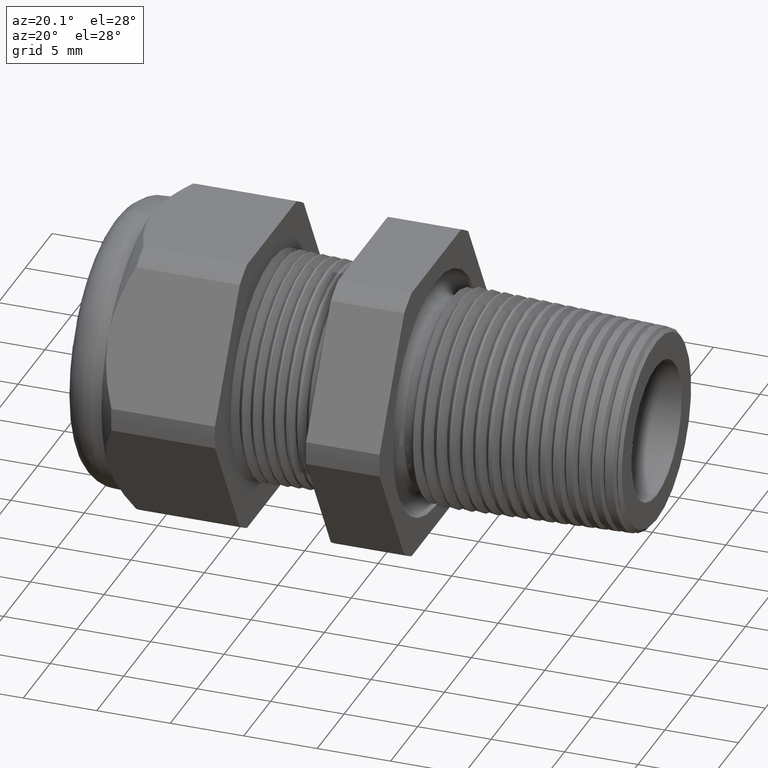
[diagram: clean part render]
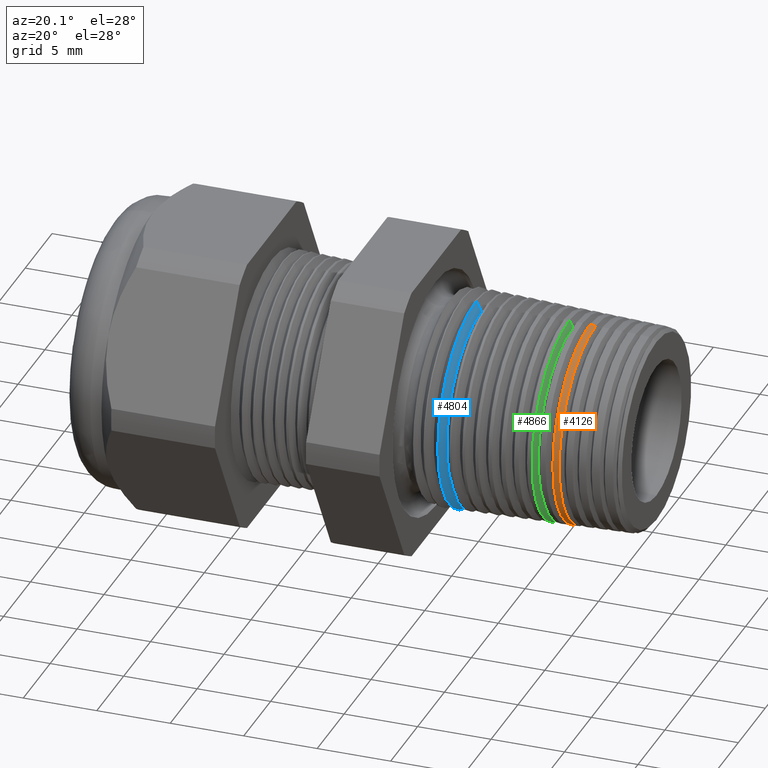
[diagram: same view with three faces highlighted in distinct colors, each labeled with its STEP entity id]
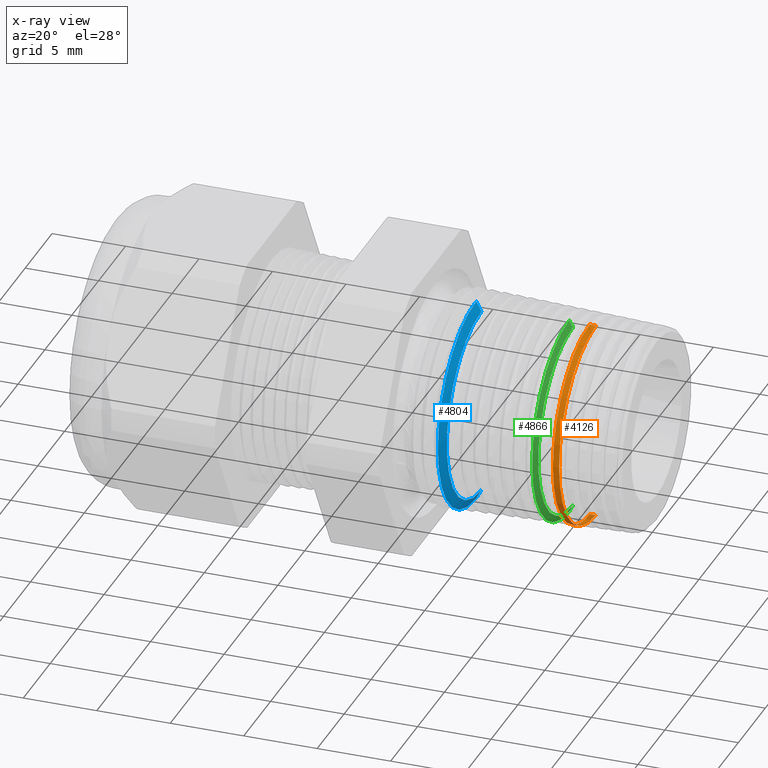
[diagram: x-ray of the same camera — body ghosted, the three highlighted faces saturated]
A machine part, auxiliary view with three faces highlighted in distinct colors.
The next image is the same camera in x-ray (body ghosted, the three faces saturated) — at least one of them is partly hidden behind the body in this view.
Their STEP definitions:

[orange] entity #4126 — the highlighted conical surface has half-angle 2 deg.
#728 = CARTESIAN_POINT ( 'NONE',  ( 0.1179459735222785800, 3.305925973248023100E-017, -0.2696604123915639100 ) ) ;
#767 = CARTESIAN_POINT ( 'NONE',  ( 0.1013982640682518800, 3.309464337575206800E-017, -0.2702382711390242700 ) ) ;
#773 = CARTESIAN_POINT ( 'NONE',  ( 0.1013982640682518800, 0.0000000000000000000, 0.2702382711390242700 ) ) ;
#803 = CARTESIAN_POINT ( 'NONE',  ( 0.1179459735222785800, 0.0000000000000000000, 0.2696604123915639100 ) ) ;
#1355 = DIRECTION ( 'NONE',  ( -0.9993908270190959800, 0.0000000000000000000, 0.03489949670249371100 ) ) ;
#1356 = VECTOR ( 'NONE', #1355, 39.37007874015748100 ) ;
#1357 = CARTESIAN_POINT ( 'NONE',  ( 0.2799999999999999700, 0.0000000000000000000, 0.2640013610877269800 ) ) ;
#1358 = LINE ( 'NONE', #1357, #1356 ) ;
#1359 = DIRECTION ( 'NONE',  ( -0.9993908270190959800, 4.273955692856252800E-018, -0.03489949670249371100 ) ) ;
#1360 = VECTOR ( 'NONE', #1359, 39.37007874015748100 ) ;
#1361 = CARTESIAN_POINT ( 'NONE',  ( 0.2799999999999999700, 3.233084218266294700E-017, -0.2640013610877269800 ) ) ;
#1362 = LINE ( 'NONE', #1361, #1360 ) ;
#1613 = DIRECTION ( 'NONE',  ( 0.0000000000000000000, 0.0000000000000000000, -1.000000000000000000 ) ) ;
#1614 = DIRECTION ( 'NONE',  ( -1.000000000000000000, 0.0000000000000000000, 0.0000000000000000000 ) ) ;
#1615 = CARTESIAN_POINT ( 'NONE',  ( 0.1013982640682518800, 0.0000000000000000000, 0.0000000000000000000 ) ) ;
#1616 = AXIS2_PLACEMENT_3D ( 'NONE', #1615, #1614, #1613 ) ;
#1617 = CIRCLE ( 'NONE', #1616, 0.2702382711390242700 ) ;
#1618 = DIRECTION ( 'NONE',  ( 0.0000000000000000000, 0.0000000000000000000, 1.000000000000000000 ) ) ;
#1619 = DIRECTION ( 'NONE',  ( 1.000000000000000000, 0.0000000000000000000, 0.0000000000000000000 ) ) ;
#1620 = CARTESIAN_POINT ( 'NONE',  ( 0.1179459735222785800, 0.0000000000000000000, 0.0000000000000000000 ) ) ;
#1621 = AXIS2_PLACEMENT_3D ( 'NONE', #1620, #1619, #1618 ) ;
#1622 = DIRECTION ( 'NONE',  ( 0.0000000000000000000, 0.0000000000000000000, 1.000000000000000000 ) ) ;
#1623 = DIRECTION ( 'NONE',  ( -1.000000000000000000, 0.0000000000000000000, 0.0000000000000000000 ) ) ;
#1624 = CARTESIAN_POINT ( 'NONE',  ( 0.2799999999999999700, 0.0000000000000000000, 0.0000000000000000000 ) ) ;
#1625 = AXIS2_PLACEMENT_3D ( 'NONE', #1624, #1623, #1622 ) ;
#1626 = CIRCLE ( 'NONE', #1621, 0.2696604123915639100 ) ;
#1627 = CONICAL_SURFACE ( 'NONE', #1625, 0.2640013610877269800, 0.03490658503987932600 ) ;
#1628 = FACE_OUTER_BOUND ( 'NONE', #4127, .T. ) ;
#3669 = VERTEX_POINT ( 'NONE', #728 ) ;
#3679 = VERTEX_POINT ( 'NONE', #773 ) ;
#3682 = VERTEX_POINT ( 'NONE', #767 ) ;
#3693 = VERTEX_POINT ( 'NONE', #803 ) ;
#4000 = EDGE_CURVE ( 'NONE', #3669, #3682, #1362, .T. ) ;
#4003 = EDGE_CURVE ( 'NONE', #3693, #3679, #1358, .T. ) ;
#4126 = ADVANCED_FACE ( 'NONE', ( #1628 ), #1627, .T. ) ;
#4127 = EDGE_LOOP ( 'NONE', ( #4128, #4129, #4131, #4132 ) ) ;
#4128 = ORIENTED_EDGE ( 'NONE', *, *, #4000, .F. ) ;
#4129 = ORIENTED_EDGE ( 'NONE', *, *, #4130, .F. ) ;
#4130 = EDGE_CURVE ( 'NONE', #3693, #3669, #1626, .T. ) ;
#4131 = ORIENTED_EDGE ( 'NONE', *, *, #4003, .T. ) ;
#4132 = ORIENTED_EDGE ( 'NONE', *, *, #4133, .F. ) ;
#4133 = EDGE_CURVE ( 'NONE', #3682, #3679, #1617, .T. ) ;

[blue] entity #4804 — the highlighted conical surface has half-angle 62 deg.
#1318 = CARTESIAN_POINT ( 'NONE',  ( -0.2030135066194303000, 0.0000000000000000000, 0.2808685644137813300 ) ) ;
#1363 = CARTESIAN_POINT ( 'NONE',  ( -0.1887370280109210400, 0.0000000000000000000, 0.2540184132628080000 ) ) ;
#1365 = CARTESIAN_POINT ( 'NONE',  ( -0.1887370280109210400, 3.275238125586184500E-017, -0.2540184132628080000 ) ) ;
#1490 = DIRECTION ( 'NONE',  ( -0.4694715627859018000, 1.081298943409538000E-016, -0.8829475928589209900 ) ) ;
#1491 = VECTOR ( 'NONE', #1490, 39.37007874015748100 ) ;
#1492 = CARTESIAN_POINT ( 'NONE',  ( -0.2049999999999999600, 3.485401308899047800E-017, -0.2846046150878539000 ) ) ;
#1493 = LINE ( 'NONE', #1492, #1491 ) ;
#1494 = CARTESIAN_POINT ( 'NONE',  ( -0.2030135066194303000, 3.440473564855610700E-017, -0.2808685644137813300 ) ) ;
#1496 = DIRECTION ( 'NONE',  ( -0.4694715627859018000, 0.0000000000000000000, 0.8829475928589209900 ) ) ;
#1497 = VECTOR ( 'NONE', #1496, 39.37007874015748100 ) ;
#1498 = CARTESIAN_POINT ( 'NONE',  ( -0.2049999999999999600, 0.0000000000000000000, 0.2846046150878539000 ) ) ;
#1499 = LINE ( 'NONE', #1498, #1497 ) ;
#1781 = DIRECTION ( 'NONE',  ( 0.0000000000000000000, 0.0000000000000000000, 1.000000000000000000 ) ) ;
#1782 = DIRECTION ( 'NONE',  ( 1.000000000000000000, 0.0000000000000000000, 0.0000000000000000000 ) ) ;
#1783 = CARTESIAN_POINT ( 'NONE',  ( -0.2030135066194303000, 0.0000000000000000000, 0.0000000000000000000 ) ) ;
#1784 = AXIS2_PLACEMENT_3D ( 'NONE', #1783, #1782, #1781 ) ;
#1789 = CIRCLE ( 'NONE', #1784, 0.2808685644137813300 ) ;
#2768 = DIRECTION ( 'NONE',  ( 0.0000000000000000000, 0.0000000000000000000, -1.000000000000000000 ) ) ;
#2769 = DIRECTION ( 'NONE',  ( 1.000000000000000000, 0.0000000000000000000, 0.0000000000000000000 ) ) ;
#2770 = AXIS2_PLACEMENT_3D ( 'NONE', #2775, #2769, #2768 ) ;
#2771 = CIRCLE ( 'NONE', #2770, 0.2540184132628080000 ) ;
#2772 = DIRECTION ( 'NONE',  ( 0.0000000000000000000, 0.0000000000000000000, 1.000000000000000000 ) ) ;
#2773 = DIRECTION ( 'NONE',  ( -1.000000000000000000, 0.0000000000000000000, 0.0000000000000000000 ) ) ;
#2774 = AXIS2_PLACEMENT_3D ( 'NONE', #2782, #2773, #2772 ) ;
#2775 = CARTESIAN_POINT ( 'NONE',  ( -0.1887370280109210400, 0.0000000000000000000, 0.0000000000000000000 ) ) ;
#2776 = CONICAL_SURFACE ( 'NONE', #2774, 0.2846046150878539000, 1.082104136236471800 ) ;
#2777 = FACE_OUTER_BOUND ( 'NONE', #4805, .T. ) ;
#2782 = CARTESIAN_POINT ( 'NONE',  ( -0.2049999999999999600, 0.0000000000000000000, 0.0000000000000000000 ) ) ;
#3990 = VERTEX_POINT ( 'NONE', #1318 ) ;
#3996 = VERTEX_POINT ( 'NONE', #1365 ) ;
#3998 = VERTEX_POINT ( 'NONE', #1363 ) ;
#4060 = EDGE_CURVE ( 'NONE', #3998, #3990, #1499, .T. ) ;
#4063 = VERTEX_POINT ( 'NONE', #1494 ) ;
#4065 = EDGE_CURVE ( 'NONE', #3996, #4063, #1493, .T. ) ;
#4205 = EDGE_CURVE ( 'NONE', #3990, #4063, #1789, .T. ) ;
#4804 = ADVANCED_FACE ( 'NONE', ( #2777 ), #2776, .T. ) ;
#4805 = EDGE_LOOP ( 'NONE', ( #4806, #4807, #4809, #4810 ) ) ;
#4806 = ORIENTED_EDGE ( 'NONE', *, *, #4065, .F. ) ;
#4807 = ORIENTED_EDGE ( 'NONE', *, *, #4808, .F. ) ;
#4808 = EDGE_CURVE ( 'NONE', #3998, #3996, #2771, .T. ) ;
#4809 = ORIENTED_EDGE ( 'NONE', *, *, #4060, .T. ) ;
#4810 = ORIENTED_EDGE ( 'NONE', *, *, #4205, .T. ) ;

[green] entity #4866 — the highlighted conical surface has half-angle 62 deg.
#817 = CARTESIAN_POINT ( 'NONE',  ( 0.04662164460189878500, 3.335825438049710400E-017, -0.2721511128409456700 ) ) ;
#818 = DIRECTION ( 'NONE',  ( -0.4694715627859018000, 1.081298943409538000E-016, -0.8829475928589209900 ) ) ;
#819 = VECTOR ( 'NONE', #818, 39.37007874015748100 ) ;
#820 = CARTESIAN_POINT ( 'NONE',  ( 0.04000000000000004900, 3.485401308899047800E-017, -0.2846046150878539000 ) ) ;
#821 = LINE ( 'NONE', #820, #819 ) ;
#875 = CARTESIAN_POINT ( 'NONE',  ( 0.04662164460189878500, 0.0000000000000000000, 0.2721511128409456200 ) ) ;
#1026 = CARTESIAN_POINT ( 'NONE',  ( 0.05626297198907897300, 0.0000000000000000000, 0.2540184132628080000 ) ) ;
#1027 = CARTESIAN_POINT ( 'NONE',  ( 0.05626297198907897300, 3.221859129759208100E-017, -0.2540184132628080000 ) ) ;
#1063 = DIRECTION ( 'NONE',  ( -0.4694715627859018000, 0.0000000000000000000, 0.8829475928589209900 ) ) ;
#1064 = VECTOR ( 'NONE', #1063, 39.37007874015748100 ) ;
#1065 = CARTESIAN_POINT ( 'NONE',  ( 0.04000000000000004900, 0.0000000000000000000, 0.2846046150878539000 ) ) ;
#1066 = LINE ( 'NONE', #1065, #1064 ) ;
#1572 = DIRECTION ( 'NONE',  ( 1.000000000000000000, 0.0000000000000000000, 0.0000000000000000000 ) ) ;
#1573 = AXIS2_PLACEMENT_3D ( 'NONE', #1579, #1572, #1634 ) ;
#1574 = CIRCLE ( 'NONE', #1573, 0.2721511128409456200 ) ;
#1579 = CARTESIAN_POINT ( 'NONE',  ( 0.04662164460189878500, 0.0000000000000000000, 0.0000000000000000000 ) ) ;
#1634 = DIRECTION ( 'NONE',  ( 0.0000000000000000000, 0.0000000000000000000, 1.000000000000000000 ) ) ;
#2863 = DIRECTION ( 'NONE',  ( 0.0000000000000000000, 0.0000000000000000000, -1.000000000000000000 ) ) ;
#2864 = DIRECTION ( 'NONE',  ( 1.000000000000000000, 0.0000000000000000000, 0.0000000000000000000 ) ) ;
#2865 = AXIS2_PLACEMENT_3D ( 'NONE', #2871, #2864, #2863 ) ;
#2866 = CIRCLE ( 'NONE', #2865, 0.2540184132628080000 ) ;
#2867 = DIRECTION ( 'NONE',  ( 0.0000000000000000000, 0.0000000000000000000, 1.000000000000000000 ) ) ;
#2868 = DIRECTION ( 'NONE',  ( -1.000000000000000000, 0.0000000000000000000, 0.0000000000000000000 ) ) ;
#2869 = CARTESIAN_POINT ( 'NONE',  ( 0.04000000000000004900, 0.0000000000000000000, 0.0000000000000000000 ) ) ;
#2870 = AXIS2_PLACEMENT_3D ( 'NONE', #2869, #2868, #2867 ) ;
#2871 = CARTESIAN_POINT ( 'NONE',  ( 0.05626297198907897300, 0.0000000000000000000, 0.0000000000000000000 ) ) ;
#2872 = CONICAL_SURFACE ( 'NONE', #2870, 0.2846046150878539000, 1.082104136236471800 ) ;
#2877 = FACE_OUTER_BOUND ( 'NONE', #4867, .T. ) ;
#3719 = EDGE_CURVE ( 'NONE', #3809, #3720, #821, .T. ) ;
#3720 = VERTEX_POINT ( 'NONE', #817 ) ;
#3723 = VERTEX_POINT ( 'NONE', #875 ) ;
#3809 = VERTEX_POINT ( 'NONE', #1027 ) ;
#3810 = VERTEX_POINT ( 'NONE', #1026 ) ;
#3823 = EDGE_CURVE ( 'NONE', #3810, #3723, #1066, .T. ) ;
#4121 = EDGE_CURVE ( 'NONE', #3723, #3720, #1574, .T. ) ;
#4848 = ORIENTED_EDGE ( 'NONE', *, *, #4121, .T. ) ;
#4866 = ADVANCED_FACE ( 'NONE', ( #2877 ), #2872, .T. ) ;
#4867 = EDGE_LOOP ( 'NONE', ( #4868, #4869, #4871, #4848 ) ) ;
#4868 = ORIENTED_EDGE ( 'NONE', *, *, #3719, .F. ) ;
#4869 = ORIENTED_EDGE ( 'NONE', *, *, #4870, .F. ) ;
#4870 = EDGE_CURVE ( 'NONE', #3810, #3809, #2866, .T. ) ;
#4871 = ORIENTED_EDGE ( 'NONE', *, *, #3823, .T. ) ;